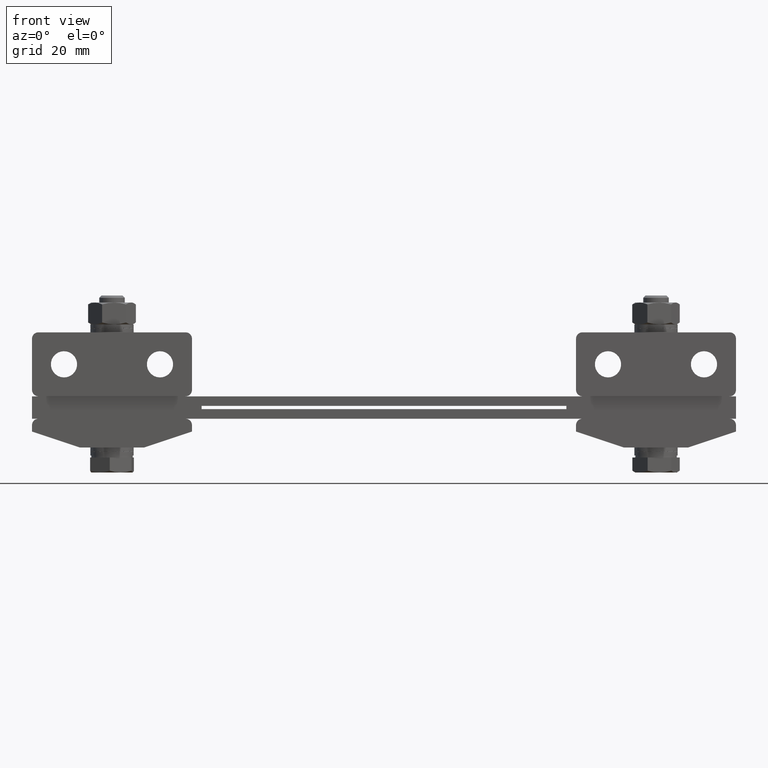
[diagram: clean part render]
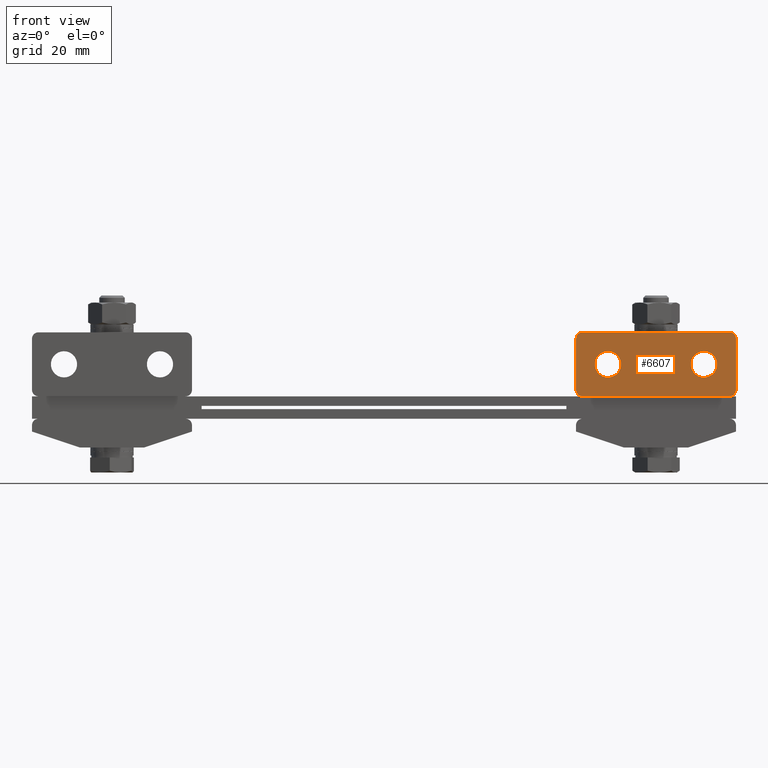
[diagram: same view with one face highlighted and labeled with its STEP entity id]
A machine part, front view. The second image highlights one B-rep face of the part: STEP entity #6607.
In plain terms, the highlighted planar face has unit normal (0, 1, -0).
Its self-contained STEP definition (entity closure, byte-faithful):
#52 = ORIENTED_EDGE ( 'NONE', *, *, #12550, .T. ) ;
#258 = CARTESIAN_POINT ( 'NONE',  ( 60.00000000000000000, -15.50000000000000000, 9.000000000000000000 ) ) ;
#365 = EDGE_CURVE ( 'NONE', #17944, #2791, #3402, .T. ) ;
#470 = CARTESIAN_POINT ( 'NONE',  ( 100.0000000000000000, -15.50000000000000000, 21.10000000000000100 ) ) ;
#471 = CARTESIAN_POINT ( 'NONE',  ( 60.00000000000000000, -15.50000000000000000, 27.00000000000000000 ) ) ;
#801 = DIRECTION ( 'NONE',  ( 0.0000000000000000000, 0.0000000000000000000, 1.000000000000000000 ) ) ;
#832 = CIRCLE ( 'NONE', #3578, 4.099999999999999600 ) ;
#895 = CARTESIAN_POINT ( 'NONE',  ( 108.0000000000000000, -15.50000000000000000, 7.000000000000000000 ) ) ;
#964 = EDGE_LOOP ( 'NONE', ( #6383, #1055 ) ) ;
#1055 = ORIENTED_EDGE ( 'NONE', *, *, #3999, .T. ) ;
#1190 = EDGE_LOOP ( 'NONE', ( #20983, #8851 ) ) ;
#1549 = DIRECTION ( 'NONE',  ( 1.554312234475215000E-015, 1.000000000000000000, 0.0000000000000000000 ) ) ;
#1621 = DIRECTION ( 'NONE',  ( 0.0000000000000000000, 0.0000000000000000000, 1.000000000000000000 ) ) ;
#2067 = LINE ( 'NONE', #20998, #5875 ) ;
#2504 = DIRECTION ( 'NONE',  ( 1.554312234475215000E-015, 1.000000000000000000, 0.0000000000000000000 ) ) ;
#2613 = PLANE ( 'NONE',  #16532 ) ;
#2791 = VERTEX_POINT ( 'NONE', #12951 ) ;
#2834 = CARTESIAN_POINT ( 'NONE',  ( 70.00000000000000000, -15.50000000000000000, 21.10000000000000100 ) ) ;
#2906 = VECTOR ( 'NONE', #18644, 1000.000000000000000 ) ;
#3092 = CARTESIAN_POINT ( 'NONE',  ( 60.00000000000000000, -15.50000000000000000, 25.00000000000000000 ) ) ;
#3120 = VERTEX_POINT ( 'NONE', #11908 ) ;
#3335 = EDGE_CURVE ( 'NONE', #4311, #10806, #4410, .T. ) ;
#3402 = LINE ( 'NONE', #12232, #2906 ) ;
#3578 = AXIS2_PLACEMENT_3D ( 'NONE', #15658, #4560, #7622 ) ;
#3624 = DIRECTION ( 'NONE',  ( 0.0000000000000000000, 0.0000000000000000000, 1.000000000000000000 ) ) ;
#3730 = CARTESIAN_POINT ( 'NONE',  ( 62.00000000000000000, -15.50000000000000000, 25.00000000000000000 ) ) ;
#3831 = AXIS2_PLACEMENT_3D ( 'NONE', #5413, #19793, #3624 ) ;
#3943 = AXIS2_PLACEMENT_3D ( 'NONE', #12863, #1549, #1621 ) ;
#3999 = EDGE_CURVE ( 'NONE', #16456, #15540, #8126, .T. ) ;
#4311 = VERTEX_POINT ( 'NONE', #9099 ) ;
#4315 = DIRECTION ( 'NONE',  ( 0.0000000000000000000, 0.0000000000000000000, 1.000000000000000000 ) ) ;
#4406 = CARTESIAN_POINT ( 'NONE',  ( 70.00000000000000000, -15.50000000000000000, 17.00000000000000000 ) ) ;
#4410 = CIRCLE ( 'NONE', #9991, 4.099999999999999600 ) ;
#4526 = ORIENTED_EDGE ( 'NONE', *, *, #20021, .T. ) ;
#4560 = DIRECTION ( 'NONE',  ( 1.554312234475215000E-015, 1.000000000000000000, 0.0000000000000000000 ) ) ;
#5158 = CIRCLE ( 'NONE', #20300, 2.000000000000000000 ) ;
#5231 = ORIENTED_EDGE ( 'NONE', *, *, #11320, .T. ) ;
#5325 = ORIENTED_EDGE ( 'NONE', *, *, #20188, .T. ) ;
#5413 = CARTESIAN_POINT ( 'NONE',  ( 108.0000000000000000, -15.50000000000000000, 25.00000000000000000 ) ) ;
#5620 = CARTESIAN_POINT ( 'NONE',  ( 100.0000000000000000, -15.50000000000000000, 17.00000000000000000 ) ) ;
#5678 = AXIS2_PLACEMENT_3D ( 'NONE', #10793, #5911, #17142 ) ;
#5743 = FACE_BOUND ( 'NONE', #964, .T. ) ;
#5875 = VECTOR ( 'NONE', #20860, 1000.000000000000000 ) ;
#5901 = DIRECTION ( 'NONE',  ( 0.0000000000000000000, 0.0000000000000000000, 1.000000000000000000 ) ) ;
#5911 = DIRECTION ( 'NONE',  ( -1.554312234475215000E-015, -1.000000000000000000, -0.0000000000000000000 ) ) ;
#6145 = VERTEX_POINT ( 'NONE', #18483 ) ;
#6240 = VERTEX_POINT ( 'NONE', #9430 ) ;
#6383 = ORIENTED_EDGE ( 'NONE', *, *, #17575, .T. ) ;
#6607 = ADVANCED_FACE ( 'NONE', ( #5743, #16354, #11048 ), #2613, .F. ) ;
#7365 = DIRECTION ( 'NONE',  ( 1.554312234475214800E-015, 1.000000000000000000, -0.0000000000000000000 ) ) ;
#7501 = CARTESIAN_POINT ( 'NONE',  ( 60.00000000000000000, -15.50000000000000000, 27.00000000000000000 ) ) ;
#7568 = CARTESIAN_POINT ( 'NONE',  ( 62.00000000000000000, -15.50000000000000000, 27.00000000000000000 ) ) ;
#7622 = DIRECTION ( 'NONE',  ( 0.0000000000000000000, 0.0000000000000000000, 1.000000000000000000 ) ) ;
#7900 = ORIENTED_EDGE ( 'NONE', *, *, #365, .F. ) ;
#8126 = CIRCLE ( 'NONE', #17848, 4.099999999999999600 ) ;
#8556 = VECTOR ( 'NONE', #16681, 1000.000000000000000 ) ;
#8716 = EDGE_CURVE ( 'NONE', #3120, #2791, #19638, .T. ) ;
#8840 = DIRECTION ( 'NONE',  ( -1.554312234475215000E-015, -1.000000000000000000, -0.0000000000000000000 ) ) ;
#8851 = ORIENTED_EDGE ( 'NONE', *, *, #3335, .T. ) ;
#8875 = CARTESIAN_POINT ( 'NONE',  ( 69.99999999999998600, -15.50000000000000000, 12.90000000000000200 ) ) ;
#9099 = CARTESIAN_POINT ( 'NONE',  ( 99.99999999999997200, -15.50000000000000000, 12.90000000000000200 ) ) ;
#9264 = CIRCLE ( 'NONE', #3943, 4.099999999999999600 ) ;
#9430 = CARTESIAN_POINT ( 'NONE',  ( 62.00000000000000000, -15.50000000000000000, 7.000000000000000000 ) ) ;
#9991 = AXIS2_PLACEMENT_3D ( 'NONE', #5620, #16924, #18582 ) ;
#10009 = EDGE_CURVE ( 'NONE', #6240, #16080, #2067, .T. ) ;
#10372 = CIRCLE ( 'NONE', #5678, 2.000000000000000000 ) ;
#10399 = EDGE_LOOP ( 'NONE', ( #18495, #5325, #13216, #11169, #7900, #4526, #52, #5231 ) ) ;
#10662 = DIRECTION ( 'NONE',  ( -1.554312234475215000E-015, -1.000000000000000000, -0.0000000000000000000 ) ) ;
#10793 = CARTESIAN_POINT ( 'NONE',  ( 62.00000000000000000, -15.50000000000000000, 9.000000000000000000 ) ) ;
#10806 = VERTEX_POINT ( 'NONE', #470 ) ;
#11048 = FACE_OUTER_BOUND ( 'NONE', #10399, .T. ) ;
#11079 = LINE ( 'NONE', #471, #8556 ) ;
#11169 = ORIENTED_EDGE ( 'NONE', *, *, #8716, .T. ) ;
#11320 = EDGE_CURVE ( 'NONE', #14500, #6240, #10372, .T. ) ;
#11908 = CARTESIAN_POINT ( 'NONE',  ( 110.0000000000000000, -15.50000000000000000, 25.00000000000000000 ) ) ;
#12232 = CARTESIAN_POINT ( 'NONE',  ( 60.00000000000000000, -15.50000000000000000, 27.00000000000000000 ) ) ;
#12550 = EDGE_CURVE ( 'NONE', #14412, #14500, #11079, .T. ) ;
#12863 = CARTESIAN_POINT ( 'NONE',  ( 70.00000000000000000, -15.50000000000000000, 17.00000000000000000 ) ) ;
#12951 = CARTESIAN_POINT ( 'NONE',  ( 108.0000000000000000, -15.50000000000000000, 27.00000000000000000 ) ) ;
#13216 = ORIENTED_EDGE ( 'NONE', *, *, #17163, .F. ) ;
#13551 = VECTOR ( 'NONE', #17927, 1000.000000000000000 ) ;
#13678 = CARTESIAN_POINT ( 'NONE',  ( 108.0000000000000000, -15.50000000000000000, 9.000000000000000000 ) ) ;
#14412 = VERTEX_POINT ( 'NONE', #3092 ) ;
#14500 = VERTEX_POINT ( 'NONE', #258 ) ;
#15540 = VERTEX_POINT ( 'NONE', #2834 ) ;
#15568 = LINE ( 'NONE', #19730, #13551 ) ;
#15658 = CARTESIAN_POINT ( 'NONE',  ( 100.0000000000000000, -15.50000000000000000, 17.00000000000000000 ) ) ;
#16080 = VERTEX_POINT ( 'NONE', #895 ) ;
#16354 = FACE_BOUND ( 'NONE', #1190, .T. ) ;
#16456 = VERTEX_POINT ( 'NONE', #8875 ) ;
#16532 = AXIS2_PLACEMENT_3D ( 'NONE', #7501, #7365, #4315 ) ;
#16681 = DIRECTION ( 'NONE',  ( 0.0000000000000000000, 0.0000000000000000000, -1.000000000000000000 ) ) ;
#16924 = DIRECTION ( 'NONE',  ( 1.554312234475215000E-015, 1.000000000000000000, 0.0000000000000000000 ) ) ;
#17142 = DIRECTION ( 'NONE',  ( 0.0000000000000000000, 0.0000000000000000000, 1.000000000000000000 ) ) ;
#17163 = EDGE_CURVE ( 'NONE', #3120, #6145, #15568, .T. ) ;
#17575 = EDGE_CURVE ( 'NONE', #15540, #16456, #9264, .T. ) ;
#17848 = AXIS2_PLACEMENT_3D ( 'NONE', #4406, #2504, #5901 ) ;
#17927 = DIRECTION ( 'NONE',  ( 0.0000000000000000000, 0.0000000000000000000, -1.000000000000000000 ) ) ;
#17944 = VERTEX_POINT ( 'NONE', #7568 ) ;
#18483 = CARTESIAN_POINT ( 'NONE',  ( 110.0000000000000000, -15.50000000000000000, 9.000000000000000000 ) ) ;
#18495 = ORIENTED_EDGE ( 'NONE', *, *, #10009, .T. ) ;
#18582 = DIRECTION ( 'NONE',  ( 0.0000000000000000000, 0.0000000000000000000, 1.000000000000000000 ) ) ;
#18644 = DIRECTION ( 'NONE',  ( 1.000000000000000000, 1.554312234475214800E-015, 0.0000000000000000000 ) ) ;
#18883 = CIRCLE ( 'NONE', #20694, 2.000000000000001800 ) ;
#19638 = CIRCLE ( 'NONE', #3831, 2.000000000000001800 ) ;
#19730 = CARTESIAN_POINT ( 'NONE',  ( 110.0000000000000000, -15.50000000000000000, 27.00000000000000000 ) ) ;
#19793 = DIRECTION ( 'NONE',  ( -1.554312234475215000E-015, -1.000000000000000000, -0.0000000000000000000 ) ) ;
#20021 = EDGE_CURVE ( 'NONE', #17944, #14412, #18883, .T. ) ;
#20110 = DIRECTION ( 'NONE',  ( 0.0000000000000000000, 0.0000000000000000000, 1.000000000000000000 ) ) ;
#20188 = EDGE_CURVE ( 'NONE', #16080, #6145, #5158, .T. ) ;
#20275 = EDGE_CURVE ( 'NONE', #10806, #4311, #832, .T. ) ;
#20300 = AXIS2_PLACEMENT_3D ( 'NONE', #13678, #10662, #801 ) ;
#20694 = AXIS2_PLACEMENT_3D ( 'NONE', #3730, #8840, #20110 ) ;
#20860 = DIRECTION ( 'NONE',  ( 1.000000000000000000, 1.554312234475214800E-015, 0.0000000000000000000 ) ) ;
#20983 = ORIENTED_EDGE ( 'NONE', *, *, #20275, .T. ) ;
#20998 = CARTESIAN_POINT ( 'NONE',  ( 60.00000000000000000, -15.50000000000000000, 7.000000000000000000 ) ) ;